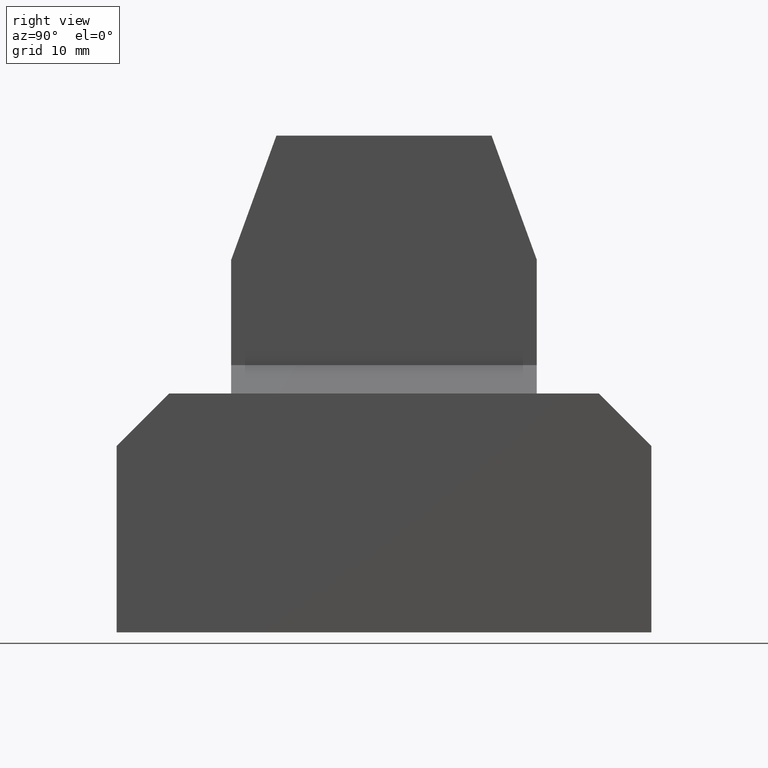
[diagram: clean part render]
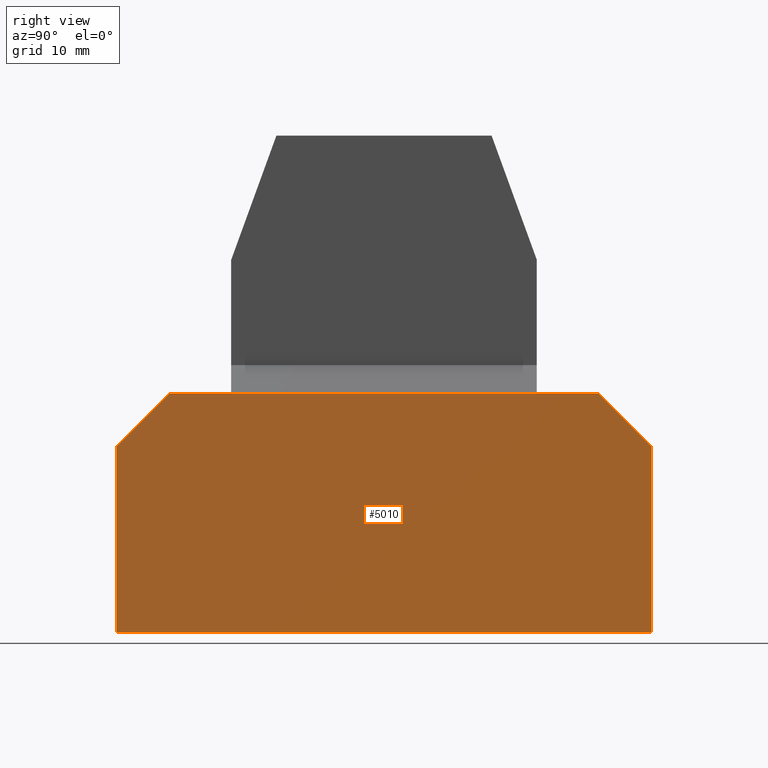
[diagram: same view with one face highlighted and labeled with its STEP entity id]
A machine part, right view. The second image highlights one B-rep face of the part: STEP entity #5010.
In plain terms, the highlighted planar face has unit normal (-1, -0, -0).
Its self-contained STEP definition (entity closure, byte-faithful):
#1070=CARTESIAN_POINT('',(-5.33730665307594,31.6364093308882,-5.));
#1080=DIRECTION('',(1.,0.,0.));
#1090=VECTOR('',#1080,1.);
#1100=LINE('',#1070,#1090);
#1110=CARTESIAN_POINT('',(6.66269334692405,31.6364093308882,-5.));
#1120=VERTEX_POINT('',#1110);
#1130=CARTESIAN_POINT('',(38.6626933469241,31.6364093308882,-5.));
#1140=VERTEX_POINT('',#1130);
#1150=EDGE_CURVE('',#1120,#1140,#1100,.T.);
#1980=CARTESIAN_POINT('',(50.6626933469241,26.1364093308882,-5.));
#1990=VERTEX_POINT('',#1980);
#2020=CARTESIAN_POINT('',(50.6626933469241,0.00564033088821247,-5.));
#2030=DIRECTION('',(0.,-1.,0.));
#2040=VECTOR('',#2030,1.);
#2050=LINE('',#2020,#2040);
#2060=CARTESIAN_POINT('',(50.6626933469241,6.63640933088821,-5.));
#2070=VERTEX_POINT('',#2060);
#2080=EDGE_CURVE('',#1990,#2070,#2050,.T.);
#3070=CARTESIAN_POINT('',(45.1626933469241,31.6364093308882,-5.));
#3080=VERTEX_POINT('',#3070);
#3110=CARTESIAN_POINT('',(45.1626933469241,31.6364093308882,-5.));
#3120=DIRECTION('',(0.707106781186548,-0.707106781186547,0.));
#3130=VECTOR('',#3120,1.);
#3140=LINE('',#3110,#3130);
#3150=EDGE_CURVE('',#3080,#1990,#3140,.T.);
#3450=CARTESIAN_POINT('',(-5.33730665307625,26.136409330888,-5.));
#3460=VERTEX_POINT('',#3450);
#3610=CARTESIAN_POINT('',(-5.33730665307593,6.63640933088821,-5.));
#3620=VERTEX_POINT('',#3610);
#3650=CARTESIAN_POINT('',(-5.33730665307606,14.7993093308882,-5.));
#3660=DIRECTION('',(0.,1.,0.));
#3670=VECTOR('',#3660,1.);
#3680=LINE('',#3650,#3670);
#3690=EDGE_CURVE('',#3620,#3460,#3680,.T.);
#4320=CARTESIAN_POINT('',(3.31749034692406,31.6364093308882,-5.));
#4330=DIRECTION('',(1.,0.,0.));
#4340=VECTOR('',#4330,1.);
#4350=LINE('',#4320,#4340);
#4360=EDGE_CURVE('',#1140,#3080,#4350,.T.);
#4580=CARTESIAN_POINT('',(0.00115534692405816,6.63640933088821,-5.));
#4590=DIRECTION('',(-1.,0.,0.));
#4600=VECTOR('',#4590,1.);
#4610=LINE('',#4580,#4600);
#4620=EDGE_CURVE('',#2070,#3620,#4610,.T.);
#4740=CARTESIAN_POINT('',(47.9708484870258,20.1216803517703,-5.));
#4750=DIRECTION('',(0.,0.,1.));
#4760=DIRECTION('',(1.,0.,0.));
#4770=AXIS2_PLACEMENT_3D('',#4740,#4750,#4760);
#4780=PLANE('',#4770);
#4790=ORIENTED_EDGE('',*,*,#1150,.T.);
#4800=CARTESIAN_POINT('',(0.00115534692405816,31.6364093308882,-5.));
#4810=DIRECTION('',(1.,0.,0.));
#4820=VECTOR('',#4810,1.);
#4830=LINE('',#4800,#4820);
#4840=CARTESIAN_POINT('',(0.162693346923945,31.6364093308882,-5.));
#4850=VERTEX_POINT('',#4840);
#4860=EDGE_CURVE('',#4850,#1120,#4830,.T.);
#4870=ORIENTED_EDGE('',*,*,#4860,.T.);
#4880=CARTESIAN_POINT('',(0.162693346923938,31.6364093308882,-5.));
#4890=DIRECTION('',(0.707106781186548,0.707106781186547,0.));
#4900=VECTOR('',#4890,1.);
#4910=LINE('',#4880,#4900);
#4920=EDGE_CURVE('',#3460,#4850,#4910,.T.);
#4930=ORIENTED_EDGE('',*,*,#4920,.T.);
#4940=ORIENTED_EDGE('',*,*,#3690,.T.);
#4950=ORIENTED_EDGE('',*,*,#4620,.T.);
#4960=ORIENTED_EDGE('',*,*,#2080,.T.);
#4970=ORIENTED_EDGE('',*,*,#3150,.T.);
#4980=ORIENTED_EDGE('',*,*,#4360,.T.);
#4990=EDGE_LOOP('',(#4980,#4970,#4960,#4950,#4940,#4930,#4870,#4790));
#5000=FACE_OUTER_BOUND('',#4990,.T.);
#5010=ADVANCED_FACE('',(#5000),#4780,.F.);